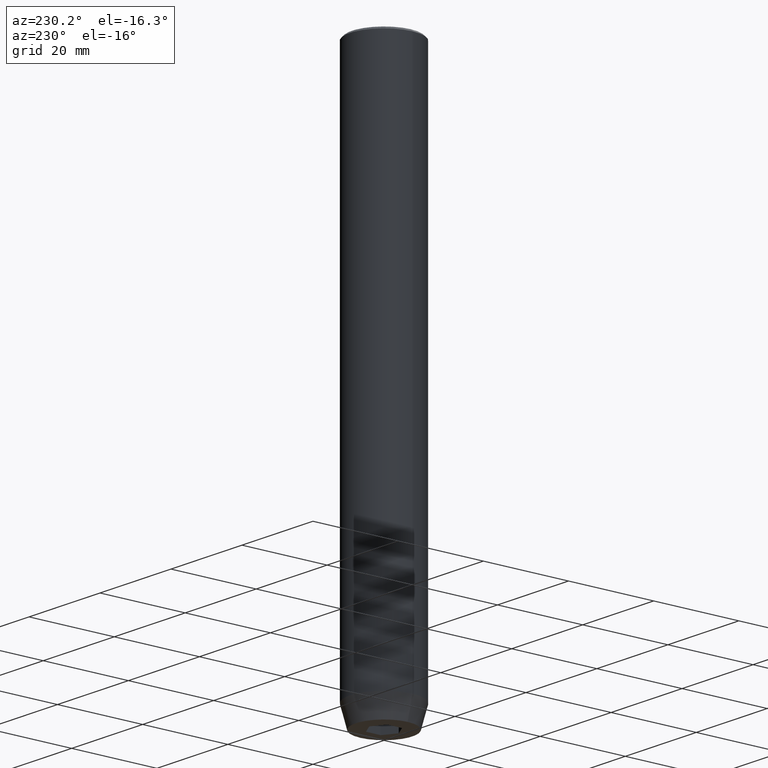
[diagram: clean part render]
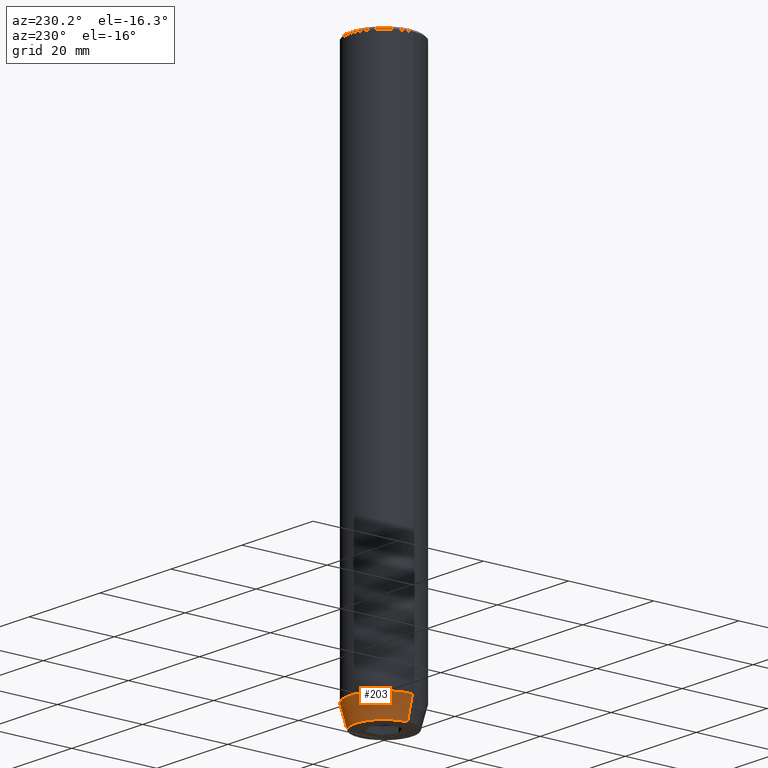
[diagram: same view with one face highlighted and labeled with its STEP entity id]
A machine part, auxiliary view. The second image highlights one B-rep face of the part: STEP entity #203.
In plain terms, the highlighted conical surface has half-angle 15 deg.
Its self-contained STEP definition (entity closure, byte-faithful):
#5 = CARTESIAN_POINT ( 'NONE',  ( 0.000000000000000000, 0.000000000000000000, -130.0000000000000000 ) ) ;
#23 = ORIENTED_EDGE ( 'NONE', *, *, #342, .T. ) ;
#47 = CIRCLE ( 'NONE', #424, 8.000000000000000000 ) ;
#56 = DIRECTION ( 'NONE',  ( -0.000000000000000000, -0.000000000000000000, 1.000000000000000000 ) ) ;
#69 = VERTEX_POINT ( 'NONE', #446 ) ;
#79 = VECTOR ( 'NONE', #433, 1000.000000000000000 ) ;
#103 = DIRECTION ( 'NONE',  ( 1.000000000000000000, 0.000000000000000000, 0.000000000000000000 ) ) ;
#105 = EDGE_CURVE ( 'NONE', #480, #152, #47, .T. ) ;
#114 = AXIS2_PLACEMENT_3D ( 'NONE', #420, #513, #506 ) ;
#152 = VERTEX_POINT ( 'NONE', #555 ) ;
#183 = CARTESIAN_POINT ( 'NONE',  ( -8.000000000000000000, 9.797174393178825657E-16, -125.0000000000000000 ) ) ;
#186 = DIRECTION ( 'NONE',  ( 1.000000000000000000, 0.000000000000000000, 0.000000000000000000 ) ) ;
#203 = ADVANCED_FACE ( 'NONE', ( #563 ), #234, .T. ) ;
#234 = CONICAL_SURFACE ( 'NONE', #114, 8.000000000000000000, 0.2617993877991500740 ) ;
#235 = CIRCLE ( 'NONE', #325, 6.660254037844381969 ) ;
#257 = LINE ( 'NONE', #183, #79 ) ;
#281 = CARTESIAN_POINT ( 'NONE',  ( 8.000000000000000000, 0.000000000000000000, -125.0000000000000000 ) ) ;
#308 = ORIENTED_EDGE ( 'NONE', *, *, #511, .T. ) ;
#313 = VERTEX_POINT ( 'NONE', #582 ) ;
#317 = EDGE_LOOP ( 'NONE', ( #308, #23, #536, #392 ) ) ;
#325 = AXIS2_PLACEMENT_3D ( 'NONE', #5, #56, #103 ) ;
#342 = EDGE_CURVE ( 'NONE', #69, #152, #257, .T. ) ;
#365 = CARTESIAN_POINT ( 'NONE',  ( 0.000000000000000000, 0.000000000000000000, -125.0000000000000000 ) ) ;
#392 = ORIENTED_EDGE ( 'NONE', *, *, #575, .F. ) ;
#397 = DIRECTION ( 'NONE',  ( -0.000000000000000000, -0.000000000000000000, 1.000000000000000000 ) ) ;
#411 = DIRECTION ( 'NONE',  ( 0.2588190451025213501, 0.000000000000000000, 0.9659258262890680902 ) ) ;
#420 = CARTESIAN_POINT ( 'NONE',  ( 0.000000000000000000, 0.000000000000000000, -125.0000000000000000 ) ) ;
#424 = AXIS2_PLACEMENT_3D ( 'NONE', #365, #397, #186 ) ;
#433 = DIRECTION ( 'NONE',  ( -0.2588190451025213501, 3.169619151431772337E-17, 0.9659258262890680902 ) ) ;
#445 = LINE ( 'NONE', #453, #562 ) ;
#446 = CARTESIAN_POINT ( 'NONE',  ( -6.660254037844381969, 8.976816591066591237E-16, -130.0000000000000000 ) ) ;
#453 = CARTESIAN_POINT ( 'NONE',  ( 8.000000000000000000, 0.000000000000000000, -125.0000000000000000 ) ) ;
#480 = VERTEX_POINT ( 'NONE', #281 ) ;
#506 = DIRECTION ( 'NONE',  ( 1.000000000000000000, 0.000000000000000000, 0.000000000000000000 ) ) ;
#511 = EDGE_CURVE ( 'NONE', #313, #69, #235, .T. ) ;
#513 = DIRECTION ( 'NONE',  ( -0.000000000000000000, -0.000000000000000000, 1.000000000000000000 ) ) ;
#536 = ORIENTED_EDGE ( 'NONE', *, *, #105, .F. ) ;
#555 = CARTESIAN_POINT ( 'NONE',  ( -8.000000000000000000, 9.797174393178825657E-16, -125.0000000000000000 ) ) ;
#562 = VECTOR ( 'NONE', #411, 1000.000000000000000 ) ;
#563 = FACE_OUTER_BOUND ( 'NONE', #317, .T. ) ;
#575 = EDGE_CURVE ( 'NONE', #313, #480, #445, .T. ) ;
#582 = CARTESIAN_POINT ( 'NONE',  ( 6.660254037844381969, 0.000000000000000000, -130.0000000000000000 ) ) ;